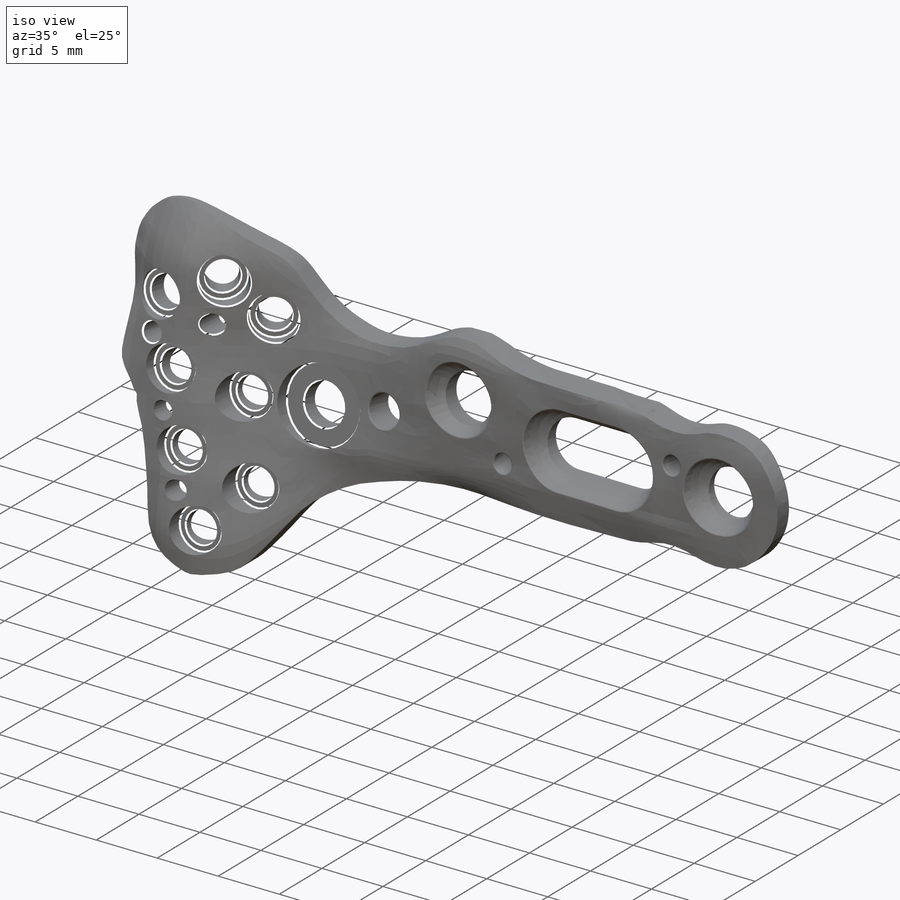
[diagram: iso view]
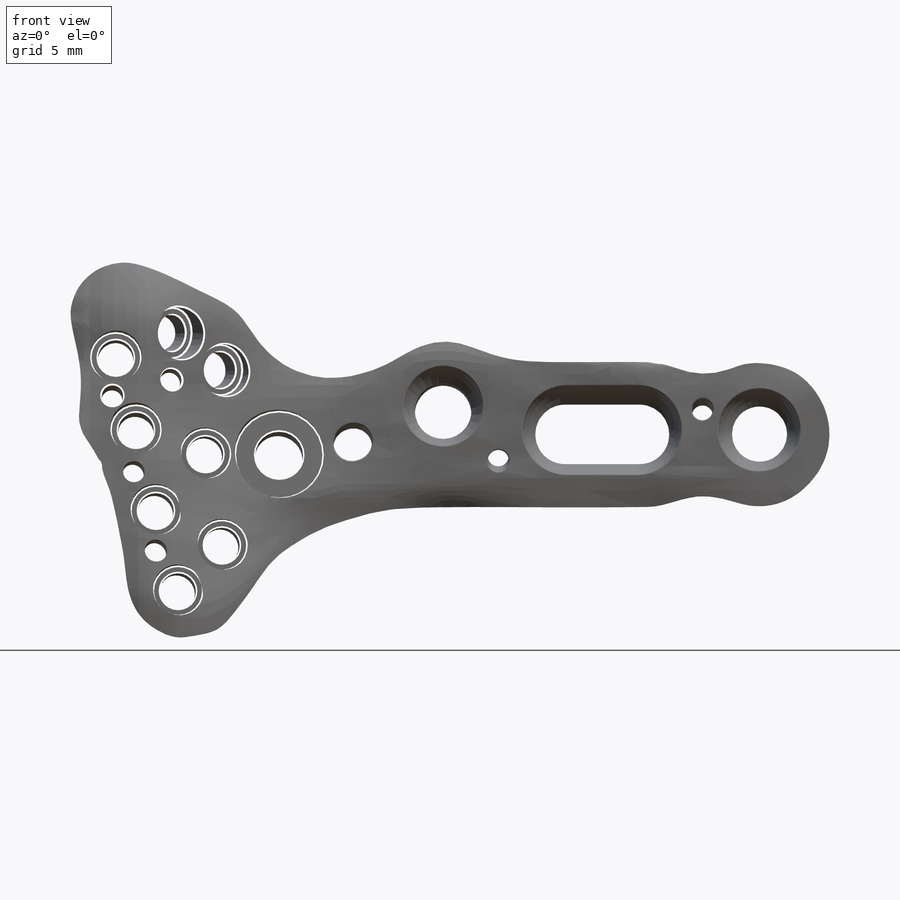
[diagram: front view]
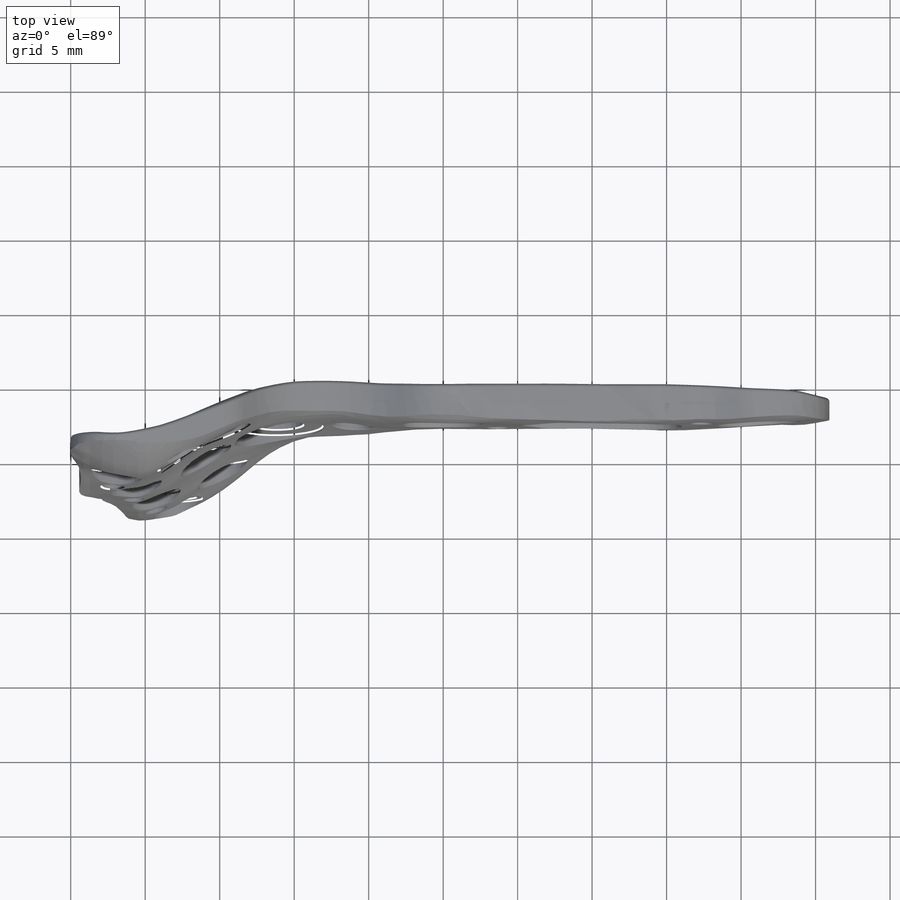
[diagram: top view]
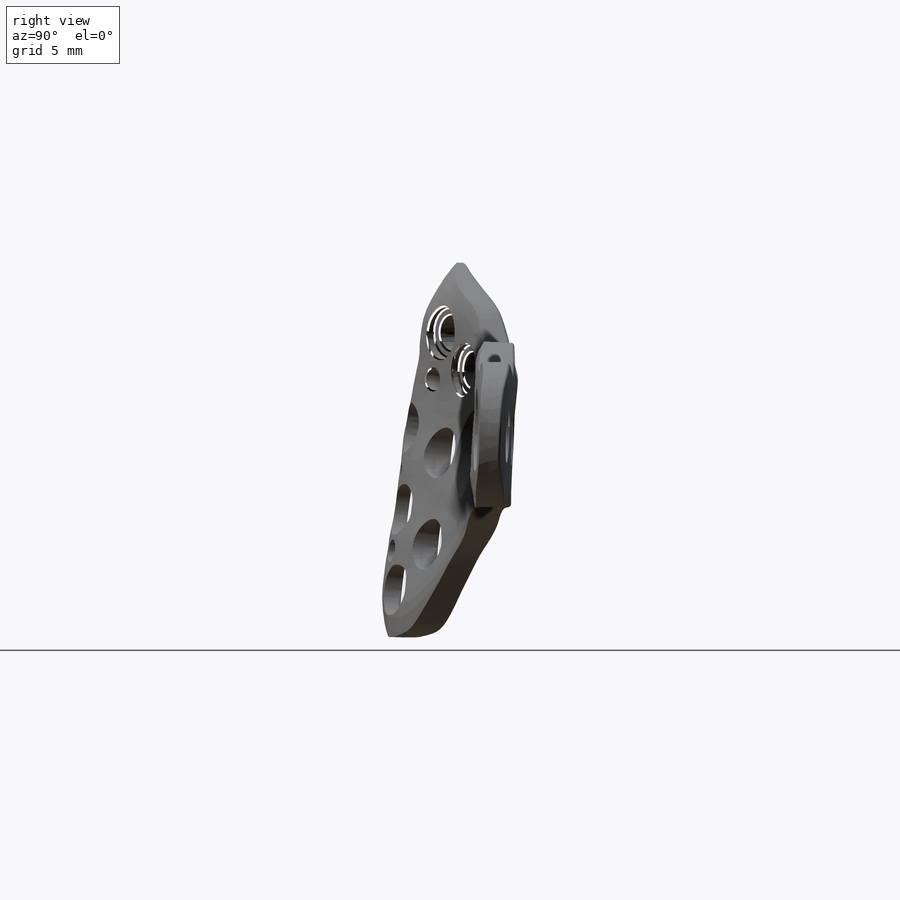
[diagram: right view]
SOLIDWORKS PART (.sldprt)
format: sldprt  version: not decoded by parser v0  size: 3,307,520 bytes
history: native  units: mm
features: sketch x89, plane x68, hole x21, cut_revolve x17, fillet x2, revolve x2, cut_extrude x2, material x1, sweep x1 (+11 scaffold rows collapsed)
feature tree (214):
  scaffold x11  (default folders/planes/origin — collapsed)
  material  "Material <not specified>"
  plane  "前基準面"
  plane  "上基準面"
  plane  "右基準面"
  plane  "Plane1"  Offset=3mm
  plane  "Plane2"  Offset=4mm
  plane  "Plane3"  Offset=20mm
  plane  "Plane4"  Offset=5mm
  plane  "Plane5"  Offset=5mm
  plane  "Plane6"  Offset=10mm
  plane  "Plane7"  Offset=15mm
  plane  "Plane8"  Offset=20mm
  plane  "Plane9"  Offset=25mm
  plane  "Plane10"  Offset=30mm
  plane  "Plane11"  Offset=35mm
  plane  "Plane12"  Offset=6mm
  plane  "Plane13"  Offset=6mm
  plane  "Plane14"  Offset=10mm
  sketch  "Sketch1"
  sketch  "Sketch2"
  sketch  "Sketch3"
  sketch  "Sketch5"
  sketch  "Sketch6"
  sketch  "Sketch7"
  sketch  "Sketch8"
  sketch  "Sketch9"
  sketch  "Sketch10"
  sketch  "Sketch11"
  sketch  "Sketch12"
  sketch  "Sketch13"
  sketch  "Sketch15"
  sketch  "Sketch16"
  sketch  "Sketch18"
  sketch  "Sketch19"
  sketch  "Sketch20"
  sketch  "Sketch22"
  sketch  "Sketch23"
  sketch  "Sketch24"
  sketch  "Sketch25"
  sketch  "Sketch26"
  sketch  "Sketch27"
  sketch  "Sketch30"
  sketch  "Sketch31"
  sketch  "Sketch35"
  sketch  "Sketch29"
  sketch  "3DSketch3"
  sketch  "3DSketch4"
  fillet  "Fillet1"  Radius=0.2mm
  hole  "Hole 1"  [1 undecoded]
  plane  "Plane26"  Offset=11mm
  sketch  "Sketch46"
  plane  "Plane36"
  sketch  "Sketch51"
  plane  "Plane38"
  sketch  "Sketch52"  dims[D1=1.2mm D2=1.73mm]
  cut_revolve  "Cut-Revolve2"  Angle=360deg
  hole  "Hole 2"  [1 undecoded]
  plane  "Plane39"  Offset=7.8mm
  sketch  "Sketch53"
  plane  "Plane40"  Offset=15mm
  sketch  "Sketch54"
  plane  "Plane41"
  sketch  "Sketch55"  dims[c1.D1=~1.093874mm c2.D1=90.0deg c3.D1=1.2mm c3.D2=1.73mm]
  cut_revolve  "Cut-Revolve3"  Angle=360deg
  hole  "Hole 3"  [1 undecoded]
  plane  "Plane42"  Offset=5.5mm
  sketch  "Sketch56"
  plane  "Plane43"  Offset=19.3mm
  sketch  "Sketch57"
  plane  "Plane44"
  sketch  "Sketch58"  dims[c1.D1=1.2mm c1.D2=1.73mm c2.D1=1.2mm]
  cut_revolve  "Cut-Revolve6"  Angle=360deg
  hole  "Hole 4"  [1 undecoded]
  plane  "Plane45"  Offset=1.8mm
  sketch  "Sketch59"
  plane  "Plane46"  Offset=16mm
  sketch  "Sketch60"
  plane  "Plane47"
  sketch  "Sketch61"  dims[D1=1.2mm D2=1.73mm]
  cut_revolve  "Cut-Revolve7"  Angle=360deg
  hole  "Hole 5"  [1 undecoded]
  plane  "Plane48"  Offset=0mm
  sketch  "Sketch62"
  plane  "Plane49"  Offset=20.75mm
  sketch  "Sketch63"
  plane  "Plane50"
  sketch  "Sketch64"  dims[c1.D1=1.2mm c1.D2=1.73mm c2.D1=1.2mm]
  cut_revolve  "Cut-Revolve8"  Angle=360deg
  hole  "Hole 6"  [1 undecoded]
  plane  "Plane51"  Offset=4mm
  sketch  "Sketch65"
  plane  "Plane52"  Offset=15mm
  sketch  "Sketch66"
  plane  "Plane53"
  sketch  "Sketch68"  dims[D1=1.2mm D2=1.73mm]
  cut_revolve  "Cut-Revolve9"  Angle=360deg
  hole  "Hole 7"  [1 undecoded]
  plane  "Plane54"  Offset=4.6mm
  sketch  "Sketch69"
  plane  "Plane55"  Offset=22mm
  sketch  "Sketch70"
  plane  "Plane56"
  sketch  "Sketch71"  dims[c1.D1=1.2mm c1.D2=1.73mm c2.D1=1.2mm]
  cut_revolve  "Cut-Revolve10"  Angle=360deg
  hole  "Hole 8"  [1 undecoded]
  plane  "Plane57"  Offset=6.5mm
  sketch  "Sketch72"
  plane  "Plane58"  Offset=18mm
  sketch  "Sketch73"
  plane  "Plane59"
  sketch  "Sketch74"  dims[D1=1.2mm D2=1.73mm]
  cut_revolve  "Cut-Revolve11"  Angle=360deg
  hole  "Hole 9"  [1 undecoded]
  plane  "Plane60"  Offset=2mm
  sketch  "Sketch75"
  plane  "Plane61"  Offset=11mm
  sketch  "Sketch76"
  plane  "Plane62"
  sketch  "Sketch78"  dims[c1.D1=1.6mm c1.D2=3.0mm c1.D3=2.0mm c2.D2=3.0mm c2.D4=3.35mm]
  cut_revolve  "Cut-Revolve12"  Angle=360deg
  hole  "Hole 10"  [1 undecoded]
  plane  "Plane63"  Offset=1mm
  sketch  "Sketch79"
  plane  "Plane64"  Offset=0mm
  sketch  "Sketch80"
  plane  "Plane65"
  sketch  "Sketch81"  dims[D2=5.5mm D3=2.75mm D1=1.9mm]
  cut_revolve  "Cut-Revolve13"  Angle=360deg
  hole  "Hole 11"  [1 undecoded]
  sketch  "Sketch89"  dims[D1=6.0mm D2=8.3mm]
  revolve  "Revolve1"  Angle=360deg
  sketch  "Sketch90"  dims[D1=6.0mm D2=4.7mm D3=4.7mm]
  sweep  "Cut-Sweep1"
  hole  "Ø4.0mm Dowel Slot1"  Diameter=4mm Depth=10.131963mm
  sketch  "Sketch93"  dims[c1.D1=11.0mm c1.D2=0.0mm c2.D1=10.68mm c2.D2=0.32mm]
  sketch  "Sketch92"  dims[hole-wizard template sketch: 60 standard entries collapsed; hole parameters kept: c18.Thru Hole Depth=~10.131963mm]
  sketch  "Sketch98"  dims[D1=2.0mm D2=5.0mm]
  cut_extrude  "Cut-Extrude1"  Depth=10mm
  hole  "Hole 12"  [1 undecoded]
  hole  "Ø3.7 (3.7) Diameter Hole1"  Diameter=3.7mm Depth=10.131963mm
  sketch  "Sketch96"
  sketch  "Sketch94"  dims[hole-wizard template sketch: 60 standard entries collapsed; hole parameters kept: c18.Thru Hole Depth=~10.131963mm]
  sketch  "Sketch97"  dims[D1=5.5mm D2=~21.194348mm]
  cut_revolve  "Cut-Revolve14"  Angle=360deg
  hole  "S Hole 1"  [1 undecoded]
  plane  "Plane67"  Offset=8.2mm
  sketch  "Sketch100"
  plane  "Plane69"  Offset=19.3mm
  sketch  "Sketch102"
  plane  "Plane70"
  sketch  "Sketch103"  dims[D1=0.75mm]
  cut_revolve  "Cut-Revolve15"  Angle=360deg
  hole  "S Hole 2"  [1 undecoded]
  plane  "Plane71"  Offset=3mm
  sketch  "Sketch104"
  plane  "Plane72"  Offset=20.8mm
  sketch  "Sketch105"
  plane  "Plane73"
  sketch  "Sketch106"  dims[D1=0.72mm]
  cut_revolve  "Cut-Revolve16"  Angle=360deg
  hole  "S Hole 3"  [1 undecoded]
  plane  "Plane74"  Offset=22.2mm
  sketch  "Sketch107"  dims[D1=0.71mm]
  plane  "Plane75"  Offset=2.1mm
  sketch  "Sketch108"
  plane  "Plane76"
  sketch  "Sketch109"  dims[D1=0.71mm]
  cut_revolve  "Cut-Revolve18"  Angle=360deg
  hole  "S Hole 4"  [1 undecoded]
  plane  "Plane77"  Offset=3.2mm
  sketch  "Sketch110"
  plane  "Plane78"  Offset=18.3mm
  sketch  "Sketch111"
  plane  "Plane79"
  sketch  "Sketch113"  dims[D1=0.71mm]
  cut_revolve  "Cut-Revolve19"  Angle=360deg
  hole  "S Hole 5"  [1 undecoded]
  plane  "Plane80"  Offset=2mm
  sketch  "Sketch114"
  plane  "Plane81"  Offset=3.7mm
  sketch  "Sketch115"
  plane  "Plane82"
  sketch  "Sketch116"  dims[D1=0.71mm]
  cut_revolve  "Cut-Revolve20"  Angle=360deg
  hole  "S Hole 6"  [1 undecoded]
  plane  "Plane83"  Offset=1.1mm
  sketch  "Sketch117"
  plane  "Plane84"  Offset=17.4mm
  sketch  "Sketch118"
  plane  "Plane85"
  sketch  "Sketch119"  dims[D1=0.71mm]
  cut_revolve  "Cut-Revolve21"  Angle=360deg
  hole  "Slot Hole"  [1 undecoded]
  plane  "Plane86"  Offset=1mm
  sketch  "Sketch121"
  plane  "Plane87"  Offset=6mm
  sketch  "Sketch122"
  plane  "Plane88"
  sketch  "Sketch123"
  revolve  "Revolve2"  Angle=360deg
  sketch  "Sketch125"  dims[D1=~0.588107mm D2=0.1mm]
  cut_extrude  "Cut-Extrude2"  Depth=10mm
  fillet  "Fillet2"  Radius=0.1mm
decode coverage: 50 of 134 modeling features carry decoded parameters
note: ~ marks probable driven/reference dimensions
note: 19 parameter values undecoded
summary: no parameter record found for 19 features | [note 3] (x19 features) parser:v0:name_prior (class ref resolved by constrained assignment + name prior)
note: suppression state not decoded; provenance and decode notes live in map.json
